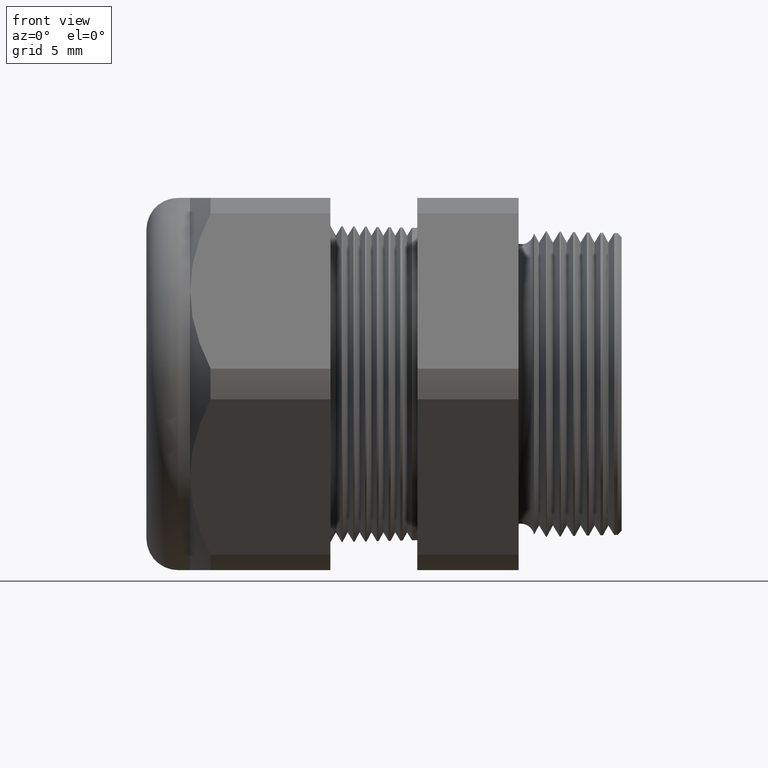
[diagram: clean part render]
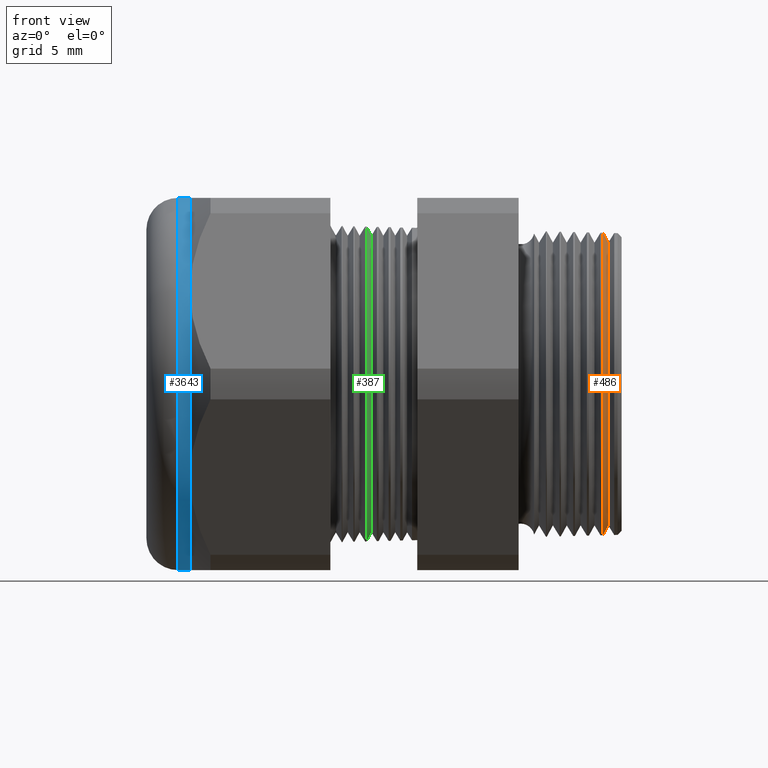
[diagram: same view with three faces highlighted in distinct colors, each labeled with its STEP entity id]
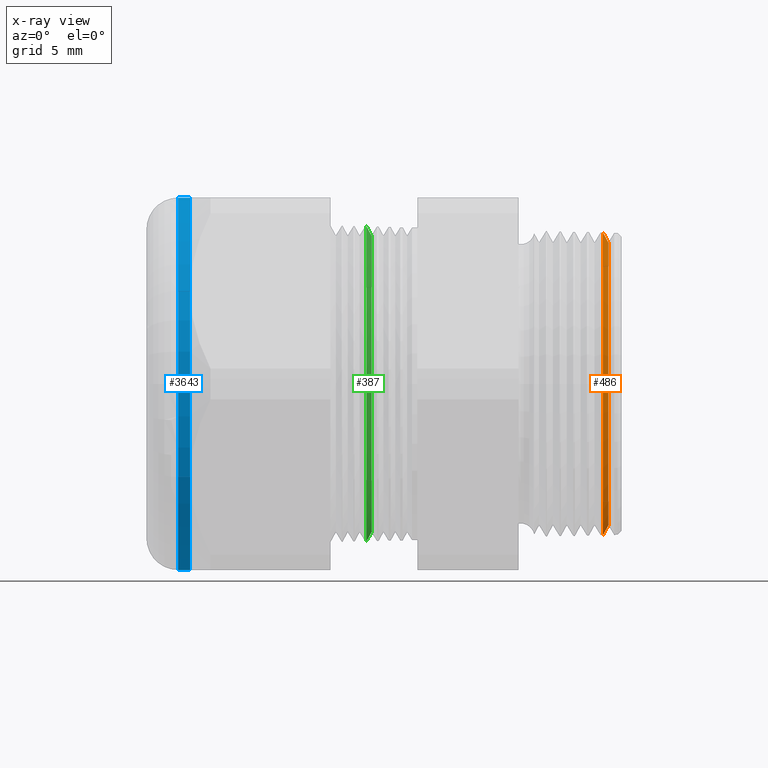
[diagram: x-ray of the same camera — body ghosted, the three highlighted faces saturated]
A machine part, front view with three faces highlighted in distinct colors.
The next image is the same camera in x-ray (body ghosted, the three faces saturated) — at least one of them is partly hidden behind the body in this view.
Their STEP definitions:

[orange] entity #486 — the highlighted conical surface has half-angle 61.5 deg.
#218 = EDGE_CURVE ( 'NONE', #591, #588, #1453, .T. ) ;
#486 = ADVANCED_FACE ( 'NONE', ( #1893 ), #1890, .T. ) ;
#487 = EDGE_LOOP ( 'NONE', ( #489, #490, #493, #495 ) ) ;
#489 = ORIENTED_EDGE ( 'NONE', *, *, #587, .F. ) ;
#490 = ORIENTED_EDGE ( 'NONE', *, *, #491, .F. ) ;
#491 = EDGE_CURVE ( 'NONE', #702, #583, #1891, .T. ) ;
#493 = ORIENTED_EDGE ( 'NONE', *, *, #673, .T. ) ;
#495 = ORIENTED_EDGE ( 'NONE', *, *, #218, .T. ) ;
#583 = VERTEX_POINT ( 'NONE', #2054 ) ;
#587 = EDGE_CURVE ( 'NONE', #583, #588, #2053, .T. ) ;
#588 = VERTEX_POINT ( 'NONE', #2049 ) ;
#591 = VERTEX_POINT ( 'NONE', #2043 ) ;
#673 = EDGE_CURVE ( 'NONE', #702, #591, #2244, .T. ) ;
#702 = VERTEX_POINT ( 'NONE', #2312 ) ;
#1450 = DIRECTION ( 'NONE',  ( 0.0000000000000000000, 0.0000000000000000000, 1.000000000000000000 ) ) ;
#1451 = DIRECTION ( 'NONE',  ( 1.000000000000000000, 0.0000000000000000000, 0.0000000000000000000 ) ) ;
#1452 = AXIS2_PLACEMENT_3D ( 'NONE', #1458, #1451, #1450 ) ;
#1453 = CIRCLE ( 'NONE', #1452, 0.3819719914491693200 ) ;
#1458 = CARTESIAN_POINT ( 'NONE',  ( -0.09697120011612862800, 0.0000000000000000000, 0.0000000000000000000 ) ) ;
#1883 = DIRECTION ( 'NONE',  ( 0.0000000000000000000, 0.0000000000000000000, -1.000000000000000000 ) ) ;
#1884 = DIRECTION ( 'NONE',  ( 1.000000000000000000, 0.0000000000000000000, 0.0000000000000000000 ) ) ;
#1885 = CARTESIAN_POINT ( 'NONE',  ( -0.08347073567907516100, 0.0000000000000000000, 0.0000000000000000000 ) ) ;
#1886 = AXIS2_PLACEMENT_3D ( 'NONE', #1885, #1884, #1883 ) ;
#1887 = DIRECTION ( 'NONE',  ( 0.0000000000000000000, 0.0000000000000000000, 1.000000000000000000 ) ) ;
#1888 = DIRECTION ( 'NONE',  ( -1.000000000000000000, 0.0000000000000000000, 0.0000000000000000000 ) ) ;
#1889 = AXIS2_PLACEMENT_3D ( 'NONE', #1892, #1888, #1887 ) ;
#1890 = CONICAL_SURFACE ( 'NONE', #1889, 0.3875503468949049700, 1.073377489976501000 ) ;
#1891 = CIRCLE ( 'NONE', #1886, 0.3571072291010749500 ) ;
#1892 = CARTESIAN_POINT ( 'NONE',  ( -0.09999999999999996400, 0.0000000000000000000, 0.0000000000000000000 ) ) ;
#1893 = FACE_OUTER_BOUND ( 'NONE', #487, .T. ) ;
#2043 = CARTESIAN_POINT ( 'NONE',  ( -0.09697120011612862800, 0.0000000000000000000, 0.3819719914491693200 ) ) ;
#2049 = CARTESIAN_POINT ( 'NONE',  ( -0.09697120011612862800, 4.678796035776936400E-017, -0.3819719914491693200 ) ) ;
#2050 = DIRECTION ( 'NONE',  ( -0.4771587602596187900, 1.076240564057388000E-016, -0.8788171126619597200 ) ) ;
#2051 = VECTOR ( 'NONE', #2050, 39.37007874015748900 ) ;
#2052 = CARTESIAN_POINT ( 'NONE',  ( -0.09999999999999996400, 4.746122918332917100E-017, -0.3875503468949049700 ) ) ;
#2053 = LINE ( 'NONE', #2052, #2051 ) ;
#2054 = CARTESIAN_POINT ( 'NONE',  ( -0.08347073567907516100, 4.525555008815886800E-017, -0.3571072291010749500 ) ) ;
#2241 = DIRECTION ( 'NONE',  ( -0.4771587602596187900, 0.0000000000000000000, 0.8788171126619597200 ) ) ;
#2242 = VECTOR ( 'NONE', #2241, 39.37007874015748900 ) ;
#2243 = CARTESIAN_POINT ( 'NONE',  ( -0.09999999999999996400, 0.0000000000000000000, 0.3875503468949049700 ) ) ;
#2244 = LINE ( 'NONE', #2243, #2242 ) ;
#2312 = CARTESIAN_POINT ( 'NONE',  ( -0.08347073567907516100, 0.0000000000000000000, 0.3571072291010749500 ) ) ;

[blue] entity #3643 — the highlighted cylindrical surface (partial cylindrical patch) has radius 11.938 mm, axis along (1, 0, 0).
#32 = VERTEX_POINT ( 'NONE', #1121 ) ;
#47 = VERTEX_POINT ( 'NONE', #1141 ) ;
#757 = VERTEX_POINT ( 'NONE', #2382 ) ;
#769 = VERTEX_POINT ( 'NONE', #2423 ) ;
#888 = VERTEX_POINT ( 'NONE', #2641 ) ;
#889 = EDGE_CURVE ( 'NONE', #769, #888, #2640, .T. ) ;
#890 = EDGE_CURVE ( 'NONE', #757, #899, #2636, .T. ) ;
#899 = VERTEX_POINT ( 'NONE', #2688 ) ;
#1121 = CARTESIAN_POINT ( 'NONE',  ( -1.139763779527558600, -0.4070319397786862900, 0.2349999999999999600 ) ) ;
#1141 = CARTESIAN_POINT ( 'NONE',  ( -1.139763779527558600, -0.4070319397786862400, -0.2350000000000001000 ) ) ;
#2382 = CARTESIAN_POINT ( 'NONE',  ( -1.169999999999999700, 0.0000000000000000000, -0.4699999999999999200 ) ) ;
#2423 = CARTESIAN_POINT ( 'NONE',  ( -1.169999999999999700, 5.755839955992558400E-017, 0.4699999999999999200 ) ) ;
#2634 = VECTOR ( 'NONE', #2699, 39.37007874015748100 ) ;
#2635 = CARTESIAN_POINT ( 'NONE',  ( 0.0000000000000000000, 0.0000000000000000000, -0.4699999999999999200 ) ) ;
#2636 = LINE ( 'NONE', #2635, #2634 ) ;
#2637 = DIRECTION ( 'NONE',  ( 1.000000000000000000, 0.0000000000000000000, 0.0000000000000000000 ) ) ;
#2638 = VECTOR ( 'NONE', #2637, 39.37007874015748100 ) ;
#2639 = CARTESIAN_POINT ( 'NONE',  ( 0.0000000000000000000, 5.755839955992558400E-017, 0.4699999999999999200 ) ) ;
#2640 = LINE ( 'NONE', #2639, #2638 ) ;
#2641 = CARTESIAN_POINT ( 'NONE',  ( -1.139763779527558600, 0.0000000000000000000, 0.4699999999999999700 ) ) ;
#2688 = CARTESIAN_POINT ( 'NONE',  ( -1.139763779527558600, 0.0000000000000000000, -0.4699999999999999700 ) ) ;
#2699 = DIRECTION ( 'NONE',  ( 1.000000000000000000, 0.0000000000000000000, 0.0000000000000000000 ) ) ;
#3068 = DIRECTION ( 'NONE',  ( 0.0000000000000000000, 0.0000000000000000000, -1.000000000000000000 ) ) ;
#3069 = DIRECTION ( 'NONE',  ( 1.000000000000000000, 0.0000000000000000000, 0.0000000000000000000 ) ) ;
#3070 = CARTESIAN_POINT ( 'NONE',  ( 0.0000000000000000000, 0.0000000000000000000, 0.0000000000000000000 ) ) ;
#3071 = AXIS2_PLACEMENT_3D ( 'NONE', #3070, #3069, #3068 ) ;
#3073 = CYLINDRICAL_SURFACE ( 'NONE', #3071, 0.4699999999999999200 ) ;
#3074 = FACE_OUTER_BOUND ( 'NONE', #3633, .T. ) ;
#3090 = DIRECTION ( 'NONE',  ( 0.0000000000000000000, 0.0000000000000000000, -1.000000000000000000 ) ) ;
#3091 = DIRECTION ( 'NONE',  ( 1.000000000000000000, 0.0000000000000000000, 0.0000000000000000000 ) ) ;
#3092 = AXIS2_PLACEMENT_3D ( 'NONE', #3099, #3091, #3090 ) ;
#3093 = CIRCLE ( 'NONE', #3092, 0.4699999999999999200 ) ;
#3094 = DIRECTION ( 'NONE',  ( 0.0000000000000000000, 0.0000000000000000000, -1.000000000000000000 ) ) ;
#3095 = DIRECTION ( 'NONE',  ( 1.000000000000000000, 0.0000000000000000000, 0.0000000000000000000 ) ) ;
#3096 = CARTESIAN_POINT ( 'NONE',  ( -1.139763779527558600, 0.0000000000000000000, 0.0000000000000000000 ) ) ;
#3097 = AXIS2_PLACEMENT_3D ( 'NONE', #3096, #3095, #3094 ) ;
#3098 = CIRCLE ( 'NONE', #3097, 0.4699999999999999200 ) ;
#3099 = CARTESIAN_POINT ( 'NONE',  ( -1.139763779527558600, 0.0000000000000000000, 0.0000000000000000000 ) ) ;
#3101 = DIRECTION ( 'NONE',  ( 0.0000000000000000000, 0.0000000000000000000, -1.000000000000000000 ) ) ;
#3102 = DIRECTION ( 'NONE',  ( 1.000000000000000000, 0.0000000000000000000, 0.0000000000000000000 ) ) ;
#3103 = AXIS2_PLACEMENT_3D ( 'NONE', #3110, #3102, #3101 ) ;
#3104 = CIRCLE ( 'NONE', #3103, 0.4699999999999999200 ) ;
#3110 = CARTESIAN_POINT ( 'NONE',  ( -1.139763779527558600, 0.0000000000000000000, 0.0000000000000000000 ) ) ;
#3139 = DIRECTION ( 'NONE',  ( 0.0000000000000000000, 0.0000000000000000000, 1.000000000000000000 ) ) ;
#3140 = DIRECTION ( 'NONE',  ( 1.000000000000000000, 0.0000000000000000000, 0.0000000000000000000 ) ) ;
#3141 = CARTESIAN_POINT ( 'NONE',  ( -1.169999999999999700, 0.0000000000000000000, 0.0000000000000000000 ) ) ;
#3142 = AXIS2_PLACEMENT_3D ( 'NONE', #3141, #3140, #3139 ) ;
#3143 = CIRCLE ( 'NONE', #3142, 0.4699999999999999200 ) ;
#3631 = ORIENTED_EDGE ( 'NONE', *, *, #3670, .T. ) ;
#3633 = EDGE_LOOP ( 'NONE', ( #3634, #3631, #3669, #3666, #3659, #3663 ) ) ;
#3634 = ORIENTED_EDGE ( 'NONE', *, *, #889, .F. ) ;
#3643 = ADVANCED_FACE ( 'NONE', ( #3074 ), #3073, .T. ) ;
#3657 = EDGE_CURVE ( 'NONE', #888, #32, #3104, .T. ) ;
#3659 = ORIENTED_EDGE ( 'NONE', *, *, #3660, .F. ) ;
#3660 = EDGE_CURVE ( 'NONE', #32, #47, #3098, .T. ) ;
#3661 = EDGE_CURVE ( 'NONE', #47, #899, #3093, .T. ) ;
#3663 = ORIENTED_EDGE ( 'NONE', *, *, #3657, .F. ) ;
#3666 = ORIENTED_EDGE ( 'NONE', *, *, #3661, .F. ) ;
#3669 = ORIENTED_EDGE ( 'NONE', *, *, #890, .T. ) ;
#3670 = EDGE_CURVE ( 'NONE', #769, #757, #3143, .T. ) ;

[green] entity #387 — the highlighted conical surface has half-angle 61.5 deg.
#236 = EDGE_CURVE ( 'NONE', #3908, #3873, #1478, .T. ) ;
#314 = ORIENTED_EDGE ( 'NONE', *, *, #3894, .F. ) ;
#315 = ORIENTED_EDGE ( 'NONE', *, *, #316, .F. ) ;
#316 = EDGE_CURVE ( 'NONE', #3651, #3653, #1678, .T. ) ;
#317 = ORIENTED_EDGE ( 'NONE', *, *, #3771, .T. ) ;
#318 = ORIENTED_EDGE ( 'NONE', *, *, #236, .T. ) ;
#387 = ADVANCED_FACE ( 'NONE', ( #1772 ), #1771, .T. ) ;
#388 = EDGE_LOOP ( 'NONE', ( #314, #315, #317, #318 ) ) ;
#1475 = DIRECTION ( 'NONE',  ( 0.0000000000000000000, 0.0000000000000000000, 1.000000000000000000 ) ) ;
#1476 = DIRECTION ( 'NONE',  ( 1.000000000000000000, 0.0000000000000000000, 0.0000000000000000000 ) ) ;
#1477 = AXIS2_PLACEMENT_3D ( 'NONE', #1482, #1476, #1475 ) ;
#1478 = CIRCLE ( 'NONE', #1477, 0.3976092762375418900 ) ;
#1482 = CARTESIAN_POINT ( 'NONE',  ( -0.6941350137730535300, 0.0000000000000000000, 0.0000000000000000000 ) ) ;
#1674 = DIRECTION ( 'NONE',  ( 0.0000000000000000000, 0.0000000000000000000, -1.000000000000000000 ) ) ;
#1675 = DIRECTION ( 'NONE',  ( 1.000000000000000000, 0.0000000000000000000, 0.0000000000000000000 ) ) ;
#1676 = CARTESIAN_POINT ( 'NONE',  ( -0.6816586839320373200, 0.0000000000000000000, 0.0000000000000000000 ) ) ;
#1677 = AXIS2_PLACEMENT_3D ( 'NONE', #1676, #1675, #1674 ) ;
#1678 = CIRCLE ( 'NONE', #1677, 0.3746307351718083900 ) ;
#1766 = DIRECTION ( 'NONE',  ( 0.0000000000000000000, 0.0000000000000000000, 1.000000000000000000 ) ) ;
#1767 = DIRECTION ( 'NONE',  ( -1.000000000000000000, 0.0000000000000000000, 0.0000000000000000000 ) ) ;
#1768 = CARTESIAN_POINT ( 'NONE',  ( -0.6954330708661412600, 0.0000000000000000000, 0.0000000000000000000 ) ) ;
#1769 = AXIS2_PLACEMENT_3D ( 'NONE', #1768, #1767, #1766 ) ;
#1771 = CONICAL_SURFACE ( 'NONE', #1769, 0.4000000000000000200, 1.073377489976499400 ) ;
#1772 = FACE_OUTER_BOUND ( 'NONE', #388, .T. ) ;
#3050 = CARTESIAN_POINT ( 'NONE',  ( -0.6816586839320373200, 4.728606290729881400E-017, -0.3746307351718083900 ) ) ;
#3060 = CARTESIAN_POINT ( 'NONE',  ( -0.6816586839320373200, 0.0000000000000000000, 0.3746307351718083900 ) ) ;
#3251 = DIRECTION ( 'NONE',  ( -0.4771587602596201200, 0.0000000000000000000, 0.8788171126619589400 ) ) ;
#3252 = VECTOR ( 'NONE', #3251, 39.37007874015748100 ) ;
#3253 = CARTESIAN_POINT ( 'NONE',  ( -0.6954330708661412600, 0.0000000000000000000, 0.4000000000000000200 ) ) ;
#3254 = LINE ( 'NONE', #3253, #3252 ) ;
#3401 = LINE ( 'NONE', #3460, #3459 ) ;
#3427 = CARTESIAN_POINT ( 'NONE',  ( -0.6941350137730535300, 4.869852520662429900E-017, -0.3976092762375418900 ) ) ;
#3443 = CARTESIAN_POINT ( 'NONE',  ( -0.6941350137730535300, 0.0000000000000000000, 0.3976092762375418900 ) ) ;
#3458 = DIRECTION ( 'NONE',  ( -0.4771587602596201200, 1.076240564057387000E-016, -0.8788171126619589400 ) ) ;
#3459 = VECTOR ( 'NONE', #3458, 39.37007874015748100 ) ;
#3460 = CARTESIAN_POINT ( 'NONE',  ( -0.6954330708661412600, 4.898587196589413100E-017, -0.4000000000000000200 ) ) ;
#3651 = VERTEX_POINT ( 'NONE', #3060 ) ;
#3653 = VERTEX_POINT ( 'NONE', #3050 ) ;
#3771 = EDGE_CURVE ( 'NONE', #3651, #3908, #3254, .T. ) ;
#3873 = VERTEX_POINT ( 'NONE', #3427 ) ;
#3894 = EDGE_CURVE ( 'NONE', #3653, #3873, #3401, .T. ) ;
#3908 = VERTEX_POINT ( 'NONE', #3443 ) ;